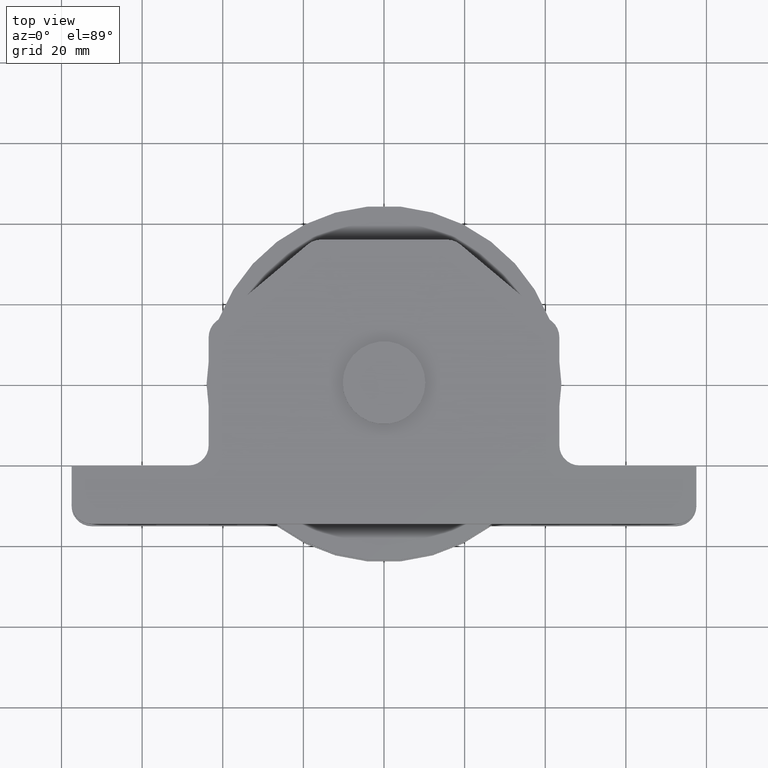
[diagram: clean part render]
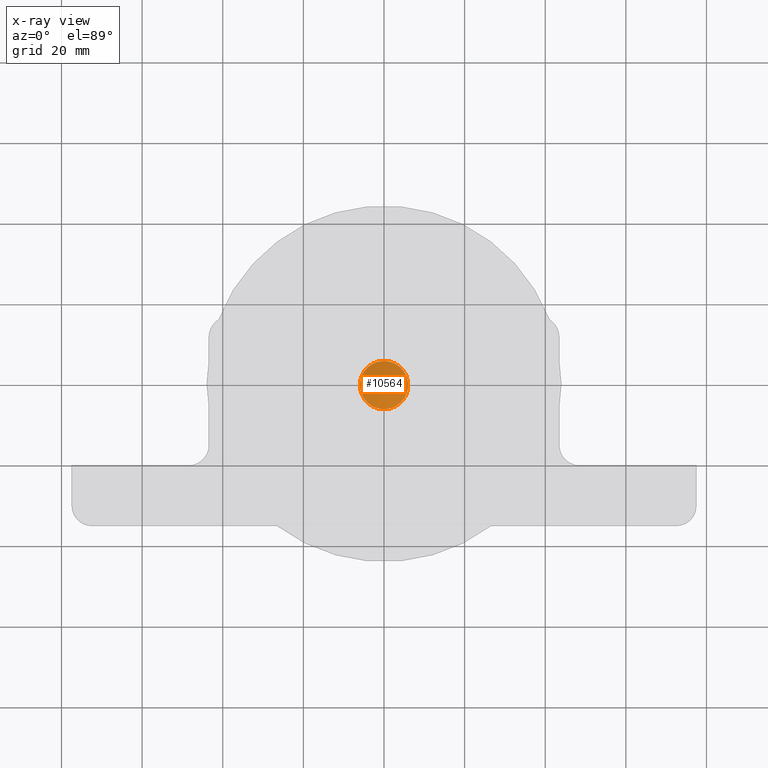
[diagram: x-ray — body ghosted, one internal face saturated and labeled with its STEP entity id]
A machine part, top view, then the same camera in x-ray: the body is ghosted and one INTERNAL B-rep face — a face not visible from any outside direction — is saturated and labeled: STEP entity #10564.
In plain terms, the highlighted conical surface has half-angle 63.435 deg.
Its self-contained STEP definition (entity closure, byte-faithful):
#20 = DIRECTION ( 'NONE',  ( -0.0000000000000000000, 1.224646799147353500E-016, -1.000000000000000000 ) ) ;
#165 = DIRECTION ( 'NONE',  ( 0.0000000000000000000, 1.000000000000000000, 0.0000000000000000000 ) ) ;
#320 = AXIS2_PLACEMENT_3D ( 'NONE', #14227, #4147, #11931 ) ;
#346 = CONICAL_SURFACE ( 'NONE', #3094, 6.000000000000000000, 1.107148717794090600 ) ;
#3094 = AXIS2_PLACEMENT_3D ( 'NONE', #4435, #20, #165 ) ;
#4147 = DIRECTION ( 'NONE',  ( -0.0000000000000000000, 1.224646799147353500E-016, -1.000000000000000000 ) ) ;
#4435 = CARTESIAN_POINT ( 'NONE',  ( 0.0000000000000000000, 8.998558695971150000E-032, -17.00000000000000000 ) ) ;
#7980 = CIRCLE ( 'NONE', #320, 6.000000000000000000 ) ;
#8706 = CARTESIAN_POINT ( 'NONE',  ( 0.0000000000000000000, 6.000000000000000000, -17.00000000000000000 ) ) ;
#10098 = EDGE_CURVE ( 'NONE', #10440, #10440, #7980, .T. ) ;
#10440 = VERTEX_POINT ( 'NONE', #8706 ) ;
#10564 = ADVANCED_FACE ( 'NONE', ( #11814 ), #346, .F. ) ;
#11406 = ORIENTED_EDGE ( 'NONE', *, *, #10098, .T. ) ;
#11814 = FACE_OUTER_BOUND ( 'NONE', #13872, .T. ) ;
#11931 = DIRECTION ( 'NONE',  ( 0.0000000000000000000, 1.000000000000000000, 0.0000000000000000000 ) ) ;
#13872 = EDGE_LOOP ( 'NONE', ( #11406 ) ) ;
#14227 = CARTESIAN_POINT ( 'NONE',  ( 0.0000000000000000000, 8.998558695971150000E-032, -17.00000000000000000 ) ) ;